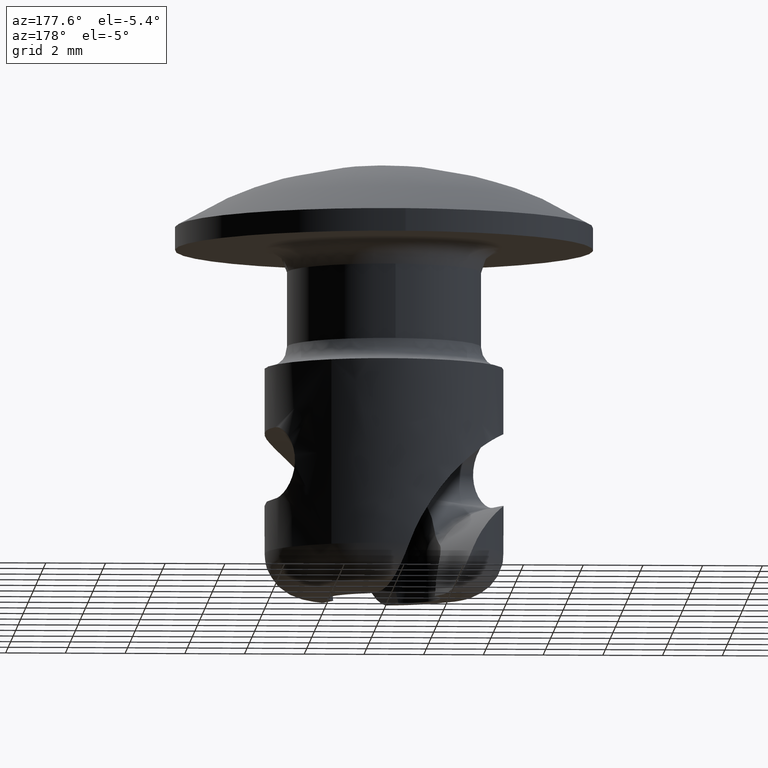
[diagram: clean part render]
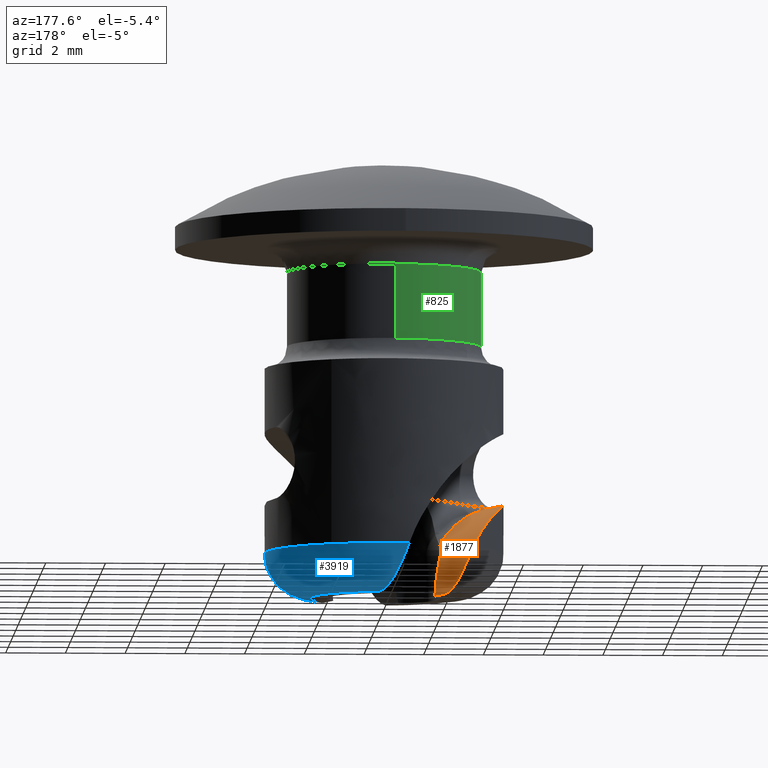
[diagram: same view with three faces highlighted in distinct colors, each labeled with its STEP entity id]
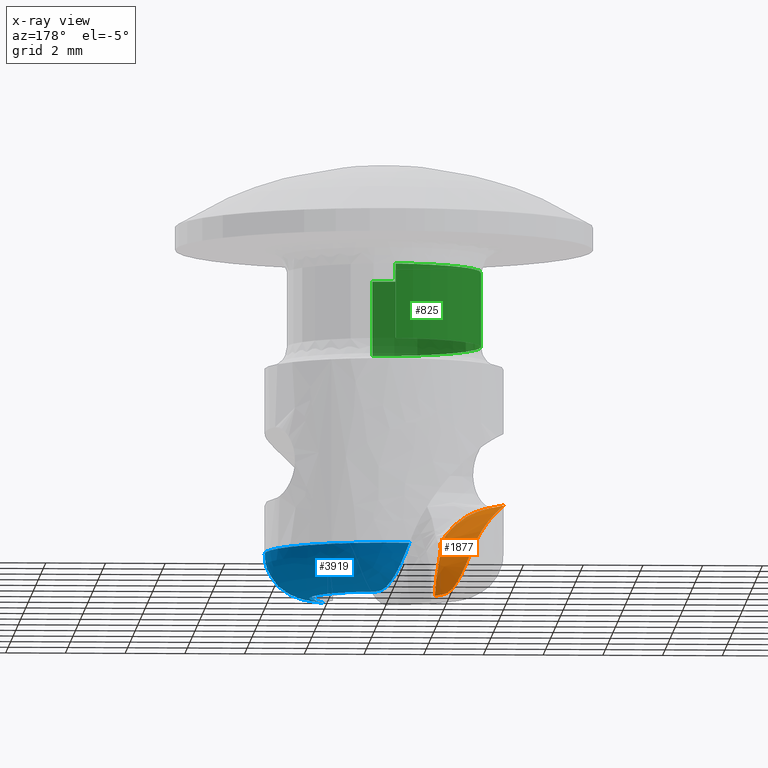
[diagram: x-ray of the same camera — body ghosted, the three highlighted faces saturated]
A machine part, auxiliary view with three faces highlighted in distinct colors.
The next image is the same camera in x-ray (body ghosted, the three faces saturated) — at least one of them is partly hidden behind the body in this view.
Their STEP definitions:

[orange] entity #1877 — the highlighted face is a freeform B-spline surface patch.
#1169=CARTESIAN_POINT('',(-3.708740166080650,-1.498420013742334,-0.841730999884860));
#1170=VERTEX_POINT('',#1169);
#1171=CARTESIAN_POINT('',(-1.881513844358060,-0.264339562170948,-2.216781854890090));
#1172=VERTEX_POINT('',#1171);
#1173=CARTESIAN_POINT('',(-3.708740166080650,-1.498420013742334,-0.841730999884860));
#1174=CARTESIAN_POINT('',(-3.673404421267112,-1.497429299170094,-0.848316137857519));
#1175=CARTESIAN_POINT('',(-3.599526705180769,-1.495357976483200,-0.862083923313879));
#1176=CARTESIAN_POINT('',(-3.486413624523329,-1.472714090863713,-0.889254475332435));
#1177=CARTESIAN_POINT('',(-3.366986117337344,-1.436624454199490,-0.923505222617490));
#1178=CARTESIAN_POINT('',(-3.241751737213644,-1.385533710517274,-0.966636081015844));
#1179=CARTESIAN_POINT('',(-3.111296850146391,-1.320275413514572,-1.019973872254133));
#1180=CARTESIAN_POINT('',(-2.976405270313804,-1.241026332720740,-1.085110533250927));
#1181=CARTESIAN_POINT('',(-2.838123993971811,-1.148176568273195,-1.163629054307551));
#1182=CARTESIAN_POINT('',(-2.697461502442137,-1.042481323601557,-1.257226836350308));
#1183=CARTESIAN_POINT('',(-2.527210036506648,-0.898303513441921,-1.390483812079576));
#1184=CARTESIAN_POINT('',(-2.335723783654763,-0.725236198038654,-1.571395092225262));
#1185=CARTESIAN_POINT('',(-2.157901797309139,-0.579030001134867,-1.774235708085469));
#1186=CARTESIAN_POINT('',(-2.006532342009894,-0.421286218477665,-1.987361904151606));
#1187=CARTESIAN_POINT('',(-1.931077810752713,-0.326561544877881,-2.125827612580026));
#1188=CARTESIAN_POINT('',(-1.881513844358060,-0.264339562170948,-2.216781854890090));
#1189=B_SPLINE_CURVE_WITH_KNOTS('',3,(#1173,#1174,#1175,#1176,#1177,#1178,#1179,#1180,#1181,#1182,#1183,#1184,#1185,#1186,#1187,#1188),.UNSPECIFIED.,.F.,.U.,(4,1,1,1,1,1,1,1,1,1,1,1,1,4),(0.0,0.039927290409534,0.083477426060717,0.131242587131753,0.183672264685199,0.241106476984441,0.303803812601183,0.371962921903674,0.445738287473330,0.525251602883443,0.660801928295244,0.795591599916388,0.865729852088046,1.0),.UNSPECIFIED.);
#1190=EDGE_CURVE('',#1170,#1172,#1189,.T.);
#1683=CARTESIAN_POINT('',(-5.150167947808564,1.990525731144601,-0.836151473579167));
#1684=CARTESIAN_POINT('',(-4.904139923792362,1.381528991219737,-0.836165954909988));
#1685=CARTESIAN_POINT('',(-4.596607067417709,0.620282188103425,-0.836189077508854));
#1686=CARTESIAN_POINT('',(-4.227571579923706,-0.293215567563063,-0.836221502273134));
#1687=CARTESIAN_POINT('',(-3.981540350370491,-0.902211012366314,-0.836250740903726));
#1688=CARTESIAN_POINT('',(-3.797002528596520,-1.358951778146384,-0.836205127983702));
#1689=CARTESIAN_POINT('',(-3.673980553088049,-1.663446930644345,-0.836243657858514));
#1690=CARTESIAN_POINT('',(-4.783104386046897,2.138829104554662,-0.907846787574411));
#1691=CARTESIAN_POINT('',(-4.537066884464153,1.529836193816991,-0.907854001754858));
#1692=CARTESIAN_POINT('',(-4.229563028311924,0.768577673844901,-0.907894620267775));
#1693=CARTESIAN_POINT('',(-3.860508602509553,-0.144912430244831,-0.907919779365897));
#1694=CARTESIAN_POINT('',(-3.614498087991130,-0.753916244469239,-0.907952768208016));
#1695=CARTESIAN_POINT('',(-3.429906929655760,-1.210635460869840,-0.907904504209650));
#1696=CARTESIAN_POINT('',(-3.306894325077137,-1.515134399470955,-0.907922319162073));
#1697=CARTESIAN_POINT('',(-4.430495325036757,2.281292477905547,-1.048258881239491));
#1698=CARTESIAN_POINT('',(-4.184484875373224,1.672288637478053,-1.048295533451240));
#1699=CARTESIAN_POINT('',(-3.876929762253284,0.911050826674656,-1.048282322626328));
#1700=CARTESIAN_POINT('',(-3.507928426780648,-0.002460727310450,-1.048357423106516));
#1701=CARTESIAN_POINT('',(-3.261865356324810,-0.611443307548094,-1.048337466321331));
#1702=CARTESIAN_POINT('',(-3.077366360384959,-1.068199759990574,-1.048390948729983));
#1703=CARTESIAN_POINT('',(-2.954275246104683,-1.372666978598710,-1.048343765781954));
#1704=CARTESIAN_POINT('',(-3.947185148304364,2.476562553934958,-1.352421440720675));
#1705=CARTESIAN_POINT('',(-3.701167652127708,1.867561560484869,-1.352448594641288));
#1706=CARTESIAN_POINT('',(-3.393627844025319,1.106317566050164,-1.352460152827083));
#1707=CARTESIAN_POINT('',(-3.024651860292495,0.192795769292614,-1.352544770516736));
#1708=CARTESIAN_POINT('',(-2.778589770211123,-0.416187207042209,-1.352538518855821));
#1709=CARTESIAN_POINT('',(-2.593848308083224,-0.872845696740980,-1.352357443672407));
#1710=CARTESIAN_POINT('',(-2.470938032095918,-1.177385978795569,-1.352472979746082));
#1711=CARTESIAN_POINT('',(-3.642662119391058,2.599597900326046,-1.584811998392845));
#1712=CARTESIAN_POINT('',(-3.396663456973049,1.990589297540045,-1.584857245739966));
#1713=CARTESIAN_POINT('',(-3.089093494998115,1.229357486066241,-1.584840806737362));
#1714=CARTESIAN_POINT('',(-2.720202039303436,0.315801537748822,-1.585005133072569));
#1715=CARTESIAN_POINT('',(-2.473895977184909,-0.293082867439481,-1.584740574536256));
#1716=CARTESIAN_POINT('',(-2.290212043260109,-0.750168626462519,-1.585602654960288));
#1717=CARTESIAN_POINT('',(-2.166360530007296,-1.054328623802972,-1.584803181499676));
#1718=CARTESIAN_POINT('',(-3.380008491837033,2.705716902761770,-1.870522531658454));
#1719=CARTESIAN_POINT('',(-3.133969811997959,2.096724468070775,-1.870529217316916));
#1720=CARTESIAN_POINT('',(-2.826498581324190,1.335452766543720,-1.870608675034908));
#1721=CARTESIAN_POINT('',(-2.457423246989442,0.421971110053281,-1.870596226920278));
#1722=CARTESIAN_POINT('',(-2.211847017565269,-0.187208166819041,-1.871040128340783));
#1723=CARTESIAN_POINT('',(-2.025242593058110,-0.643113970514181,-1.869163951124388));
#1724=CARTESIAN_POINT('',(-1.904078879211081,-0.948359909801623,-1.870828935118060));
#1725=CARTESIAN_POINT('',(-3.201150913896685,2.777980088029201,-2.102577780224227));
#1726=CARTESIAN_POINT('',(-2.955136227190167,2.168977959478975,-2.102604541757132));
#1727=CARTESIAN_POINT('',(-2.647545914515300,1.407754370225420,-2.102581275967167));
#1728=CARTESIAN_POINT('',(-2.278701476113138,0.494179425680059,-2.102768474835131));
#1729=CARTESIAN_POINT('',(-2.031630247427115,-0.114395832006283,-2.101925978627744));
#1730=CARTESIAN_POINT('',(-1.850246186177860,-0.572410800331815,-2.104600649032122));
#1731=CARTESIAN_POINT('',(-1.725716736179410,-0.876296893322151,-2.103301698877579));
#1732=CARTESIAN_POINT('',(-3.088413853220961,2.823528838023079,-2.262605279928831));
#1733=CARTESIAN_POINT('',(-2.842389181547057,2.214530743663389,-2.262625035181414));
#1734=CARTESIAN_POINT('',(-2.534836646882931,1.453291891095745,-2.262632691334924));
#1735=CARTESIAN_POINT('',(-2.165876190041481,0.539763821064002,-2.262721743364910));
#1736=CARTESIAN_POINT('',(-1.918906115109771,-0.068852305410639,-2.261965898747206));
#1737=CARTESIAN_POINT('',(-1.736839182055178,-0.526591375491594,-2.263970816066639));
#1738=CARTESIAN_POINT('',(-1.613232864175218,-0.830850438238498,-2.263539994049368));
#1739=CARTESIAN_POINT('',(-2.889999050863042,2.903693658478008,-2.601974594606458));
#1740=CARTESIAN_POINT('',(-2.643965553313381,2.294699130005219,-2.601982364883928));
#1741=CARTESIAN_POINT('',(-2.336480138289325,1.533433159330303,-2.602047360457490));
#1742=CARTESIAN_POINT('',(-1.967294322853022,0.619996140122790,-2.601950153294233));
#1743=CARTESIAN_POINT('',(-1.721130335922133,0.011054332806354,-2.601848295730344));
#1744=CARTESIAN_POINT('',(-1.537559347989862,-0.446077059380662,-2.602657884808926));
#1745=CARTESIAN_POINT('',(-1.414753739717634,-0.750659629956505,-2.602844986535935));
#1746=CARTESIAN_POINT('',(-2.772847910316185,2.951025813319395,-2.876005389483821));
#1747=CARTESIAN_POINT('',(-2.526780442774366,2.342045009620618,-2.875994563998206));
#1748=CARTESIAN_POINT('',(-2.219313760726288,1.580771470328651,-2.876070538194828));
#1749=CARTESIAN_POINT('',(-1.850095144731066,0.667347703413231,-2.875945042640120));
#1750=CARTESIAN_POINT('',(-1.604335076364889,0.058242702328822,-2.876189592960061));
#1751=CARTESIAN_POINT('',(-1.420281861333849,-0.398693857374266,-2.876587517498775));
#1752=CARTESIAN_POINT('',(-1.297384914622941,-0.703239524808557,-2.876700042033669));
#1753=CARTESIAN_POINT('',(-2.583842925239118,3.027388819071646,-3.444060543263271));
#1754=CARTESIAN_POINT('',(-2.337809946729025,2.418394080893165,-3.444072382339782));
#1755=CARTESIAN_POINT('',(-2.030272202500992,1.657149252598713,-3.444090895921231));
#1756=CARTESIAN_POINT('',(-1.661170779467018,0.743678136631784,-3.444065174416115));
#1757=CARTESIAN_POINT('',(-1.415275893338038,0.134627605484198,-3.444194919098651));
#1758=CARTESIAN_POINT('',(-1.230946536296180,-0.322197385553377,-3.444369303532465));
#1759=CARTESIAN_POINT('',(-1.108092688027482,-0.626760465896587,-3.444511404129819));
#1760=CARTESIAN_POINT('',(-2.520259979459210,3.053078008445970,-3.843626431773163));
#1761=CARTESIAN_POINT('',(-2.274214477070567,2.444088330245189,-3.843635820577132));
#1762=CARTESIAN_POINT('',(-1.966672147760748,1.682845354444877,-3.843646941062170));
#1763=CARTESIAN_POINT('',(-1.597591455377297,0.769365862747620,-3.843635763324892));
#1764=CARTESIAN_POINT('',(-1.351628983443127,0.160342638050330,-3.843706868196611));
#1765=CARTESIAN_POINT('',(-1.167261746406389,-0.296467048468872,-3.843848315236273));
#1766=CARTESIAN_POINT('',(-1.044370943807668,-0.601015198286757,-3.843961102445025));
#1767=CARTESIAN_POINT('',(-2.521943324060570,3.052397892768469,-4.245959845893760));
#1768=CARTESIAN_POINT('',(-2.275921570635426,2.443398619359204,-4.245979551473355));
#1769=CARTESIAN_POINT('',(-1.968347039605757,1.682168653904185,-4.245974399377960));
#1770=CARTESIAN_POINT('',(-1.599288366575643,0.768680265806632,-4.245977252381476));
#1771=CARTESIAN_POINT('',(-1.353281494318462,0.159674980012487,-4.246013401105419));
#1772=CARTESIAN_POINT('',(-1.168893419161835,-0.297126287355926,-4.246137356159091));
#1773=CARTESIAN_POINT('',(-1.045990394526980,-0.601669499148420,-4.246239510755946));
#1774=B_SPLINE_SURFACE_WITH_KNOTS('',3,3,((#1683,#1690,#1697,#1704,#1711,#1718,#1725,#1732,#1739,#1746,#1753,#1760,#1767),(#1684,#1691,#1698,#1705,#1712,#1719,#1726,#1733,#1740,#1747,#1754,#1761,#1768),(#1685,#1692,#1699,#1706,#1713,#1720,#1727,#1734,#1741,#1748,#1755,#1762,#1769),(#1686,#1693,#1700,#1707,#1714,#1721,#1728,#1735,#1742,#1749,#1756,#1763,#1770),(#1687,#1694,#1701,#1708,#1715,#1722,#1729,#1736,#1743,#1750,#1757,#1764,#1771),(#1688,#1695,#1702,#1709,#1716,#1723,#1730,#1737,#1744,#1751,#1758,#1765,#1772),(#1689,#1696,#1703,#1710,#1717,#1724,#1731,#1738,#1745,#1752,#1759,#1766,#1773)),.UNSPECIFIED.,.F.,.F.,.U.,(4,1,1,1,4),(4,2,1,2,1,1,2,4),(0.0,1.970446994101066,2.463058742626332,2.955670491151599,3.940893988202132),(0.0,1.0,1.500000000000000,2.0,2.250000000000000,2.500000000000000,3.0,4.0),.UNSPECIFIED.);
#1775=CARTESIAN_POINT('',(-2.884555229671560,2.771165301272810,-2.541731000000470));
#1776=VERTEX_POINT('',#1775);
#1777=CARTESIAN_POINT('',(-3.708740166080650,-1.498420013742334,-0.841730999884860));
#1778=CARTESIAN_POINT('',(-3.789603342791146,-1.298275522429606,-0.841731085191805));
#1779=CARTESIAN_POINT('',(-3.853266608022815,-1.094363711314453,-0.844898699676440));
#1780=CARTESIAN_POINT('',(-3.947624874398893,-0.679377164730645,-0.858888886197769));
#1781=CARTESIAN_POINT('',(-3.978314908902422,-0.468300505837197,-0.869689622124139));
#1782=CARTESIAN_POINT('',(-3.998773955492142,-0.146262357777916,-0.895468754313125));
#1783=CARTESIAN_POINT('',(-4.001214435422670,-0.039356055029581,-0.905592794241437));
#1784=CARTESIAN_POINT('',(-3.997677503401662,0.172743829529598,-0.929588470703924));
#1785=CARTESIAN_POINT('',(-3.991706842258776,0.278059572015497,-0.943468917006909));
#1786=CARTESIAN_POINT('',(-3.961579676277360,0.591608507315564,-0.992173819946064));
#1787=CARTESIAN_POINT('',(-3.925240589785189,0.797473242374740,-1.033901799248098));
#1788=CARTESIAN_POINT('',(-3.860135973660301,1.049801262182792,-1.104303979249838));
#1789=CARTESIAN_POINT('',(-3.846160973754782,1.099865145250535,-1.119274116367571));
#1790=CARTESIAN_POINT('',(-3.816631997633517,1.198322896425329,-1.150875348232507));
#1791=CARTESIAN_POINT('',(-3.801046300725309,1.246842307484333,-1.167540746194647));
#1792=CARTESIAN_POINT('',(-3.751988769043546,1.390254244868291,-1.220316447285539));
#1793=CARTESIAN_POINT('',(-3.716216162029630,1.483002367819371,-1.259201711167339));
#1794=CARTESIAN_POINT('',(-3.639395182733260,1.662636845654967,-1.345457747218346));
#1795=CARTESIAN_POINT('',(-3.598344842298541,1.749523326163017,-1.392826489075745));
#1796=CARTESIAN_POINT('',(-3.533479603993701,1.875303522526065,-1.471180455769283));
#1797=CARTESIAN_POINT('',(-3.511259477338315,1.916552436971531,-1.498584499654438));
#1798=CARTESIAN_POINT('',(-3.466426671580432,1.996497554886817,-1.555254974171278));
#1799=CARTESIAN_POINT('',(-3.443755817943394,2.035314400837107,-1.584589094828801));
#1800=CARTESIAN_POINT('',(-3.329540518945864,2.223794195843674,-1.736356739794271));
#1801=CARTESIAN_POINT('',(-3.235430647707428,2.356708378572311,-1.874027955967950));
#1802=CARTESIAN_POINT('',(-3.120600981695306,2.502647577831652,-2.068504378930841));
#1803=CARTESIAN_POINT('',(-3.097723793038400,2.530882099920727,-2.108617462539967));
#1804=CARTESIAN_POINT('',(-3.052670196831338,2.585045757211015,-2.190677628121291));
#1805=CARTESIAN_POINT('',(-3.030528409444796,2.610938036005944,-2.232554031894098));
#1806=CARTESIAN_POINT('',(-2.965449095197070,2.685230547071238,-2.360714131926009));
#1807=CARTESIAN_POINT('',(-2.923857825347109,2.730254531340306,-2.449524356297505));
#1808=CARTESIAN_POINT('',(-2.884555229671560,2.771165301272810,-2.541731000000470));
#1809=B_SPLINE_CURVE_WITH_KNOTS('',3,(#1777,#1778,#1779,#1780,#1781,#1782,#1783,#1784,#1785,#1786,#1787,#1788,#1789,#1790,#1791,#1792,#1793,#1794,#1795,#1796,#1797,#1798,#1799,#1800,#1801,#1802,#1803,#1804,#1805,#1806,#1807,#1808),.UNSPECIFIED.,.F.,.U.,(4,2,2,2,2,2,2,2,2,2,2,2,2,2,2,4),(0.0,0.125000000000000,0.250000000000000,0.312500000000000,0.375000000000000,0.500000000000000,0.531250000000000,0.562500000000000,0.625000000000000,0.687500000000000,0.718750000000000,0.750000000000000,0.875000000000000,0.906250000000000,0.937500000000000,1.0),.UNSPECIFIED.);
#1810=EDGE_CURVE('',#1170,#1776,#1809,.T.);
#1811=ORIENTED_EDGE('',*,*,#1810,.F.);
#1812=ORIENTED_EDGE('',*,*,#1190,.T.);
#1813=CARTESIAN_POINT('',(-1.664449571211370,0.916279663733441,-4.041731000000000));
#1814=VERTEX_POINT('',#1813);
#1815=CARTESIAN_POINT('',(-1.664449571211370,0.916279663733441,-4.041731000000000));
#1816=CARTESIAN_POINT('',(-1.667765263835405,0.910256612065892,-3.944347983160380));
#1817=CARTESIAN_POINT('',(-1.673597626954773,0.899628140123365,-3.848364676525792));
#1818=CARTESIAN_POINT('',(-1.689693682516486,0.869019628444428,-3.659163398309601));
#1819=CARTESIAN_POINT('',(-1.699961116047309,0.849040717203565,-3.565945577066669));
#1820=CARTESIAN_POINT('',(-1.724137213808776,0.798804682994247,-3.382410134949178));
#1821=CARTESIAN_POINT('',(-1.738053422142700,0.768557078685402,-3.292091063966928));
#1822=CARTESIAN_POINT('',(-1.760802522631783,0.714088867592273,-3.159026710954413));
#1823=CARTESIAN_POINT('',(-1.768727308948244,0.694320378612483,-3.114903214120736));
#1824=CARTESIAN_POINT('',(-1.784817272994294,0.651847037254395,-3.028454439859632));
#1825=CARTESIAN_POINT('',(-1.792965577448857,0.629193940741889,-2.986200737881362));
#1826=CARTESIAN_POINT('',(-1.817302213649117,0.556749856315179,-2.862428167713407));
#1827=CARTESIAN_POINT('',(-1.833412424207727,0.502507227160637,-2.783881467905613));
#1828=CARTESIAN_POINT('',(-1.855318368567029,0.410785517284321,-2.672571653977506));
#1829=CARTESIAN_POINT('',(-1.862264199610576,0.378325597957587,-2.636406035601322));
#1830=CARTESIAN_POINT('',(-1.874794246013761,0.310330883854757,-2.567156532363411));
#1831=CARTESIAN_POINT('',(-1.880356165132242,0.274953628400522,-2.534204576543164));
#1832=CARTESIAN_POINT('',(-1.894300235238677,0.164593378352178,-2.440403104765159));
#1833=CARTESIAN_POINT('',(-1.899987930595879,0.085420510634561,-2.384564540367462));
#1834=CARTESIAN_POINT('',(-1.899994469545920,-0.085285769565145,-2.287253010361252));
#1835=CARTESIAN_POINT('',(-1.894249923772138,-0.173684527415947,-2.247591698803152));
#1836=CARTESIAN_POINT('',(-1.881513844358060,-0.264339562170948,-2.216781854890090));
#1837=B_SPLINE_CURVE_WITH_KNOTS('',3,(#1815,#1816,#1817,#1818,#1819,#1820,#1821,#1822,#1823,#1824,#1825,#1826,#1827,#1828,#1829,#1830,#1831,#1832,#1833,#1834,#1835,#1836),.UNSPECIFIED.,.F.,.U.,(4,2,2,2,2,2,2,2,2,2,4),(0.0,0.125000000000000,0.250000000000000,0.375000000000000,0.437500000000000,0.500000000000000,0.625000000000000,0.687500000000000,0.750000000000000,0.875000000000000,1.0),.UNSPECIFIED.);
#1838=EDGE_CURVE('',#1814,#1172,#1837,.T.);
#1839=ORIENTED_EDGE('',*,*,#1838,.F.);
#1840=CARTESIAN_POINT('',(-1.934202547952070,1.583941404405210,-4.041731000000000));
#1841=VERTEX_POINT('',#1840);
#1842=CARTESIAN_POINT('',(-1.934202547952070,1.583941404405210,-4.041731000000000));
#1843=CARTESIAN_POINT('',(-1.664449571211370,0.916279663733441,-4.041731000000000));
#1844=QUASI_UNIFORM_CURVE('',1,(#1842,#1843),.UNSPECIFIED.,.F.,.U.);
#1845=EDGE_CURVE('',#1841,#1814,#1844,.T.);
#1846=ORIENTED_EDGE('',*,*,#1845,.F.);
#1847=CARTESIAN_POINT('',(-2.884555229671560,2.771165301272810,-2.541731000000470));
#1848=CARTESIAN_POINT('',(-2.846669988977846,2.810600721859436,-2.630612429995173));
#1849=CARTESIAN_POINT('',(-2.807917511302755,2.838093716545041,-2.722163092892382));
#1850=CARTESIAN_POINT('',(-2.747953625626095,2.859512682276400,-2.863751219175736));
#1851=CARTESIAN_POINT('',(-2.727506099503910,2.863293516838539,-2.912000071520401));
#1852=CARTESIAN_POINT('',(-2.686920388999058,2.863626402393131,-3.007282099653129));
#1853=CARTESIAN_POINT('',(-2.646470468347311,2.856892243159453,-3.101759401167779));
#1854=CARTESIAN_POINT('',(-2.605884892738354,2.836135263247263,-3.194464522396070));
#1855=CARTESIAN_POINT('',(-2.564966029106786,2.808185652995663,-3.286146472124139));
#1856=CARTESIAN_POINT('',(-2.544611162230534,2.790768993979691,-3.330853068400976));
#1857=CARTESIAN_POINT('',(-2.504389990708679,2.749974435502475,-3.416718288379666));
#1858=CARTESIAN_POINT('',(-2.484428375561476,2.726531188043906,-3.458092254206432));
#1859=CARTESIAN_POINT('',(-2.444474173774868,2.673819859911416,-3.537707836483467));
#1860=CARTESIAN_POINT('',(-2.424365660845095,2.644346842821889,-3.576147223085176));
#1861=CARTESIAN_POINT('',(-2.364834160498539,2.549540669824700,-3.684201346698746));
#1862=CARTESIAN_POINT('',(-2.325900256415580,2.477663205291824,-3.747278898892466));
#1863=CARTESIAN_POINT('',(-2.266743069147014,2.358630030848322,-3.829252590282774));
#1864=CARTESIAN_POINT('',(-2.247072758676203,2.317396890565010,-3.854199206533339));
#1865=CARTESIAN_POINT('',(-2.207965420833116,2.232964659921110,-3.899134509406125));
#1866=CARTESIAN_POINT('',(-2.188464367254221,2.189634489685610,-3.919212366829397));
#1867=CARTESIAN_POINT('',(-2.129798895271308,2.056591893633847,-3.972595480021854));
#1868=CARTESIAN_POINT('',(-2.090175308003297,1.963167673239728,-3.999107578551089));
#1869=CARTESIAN_POINT('',(-2.011920748575378,1.775187838895855,-4.033507688967568));
#1870=CARTESIAN_POINT('',(-1.973034630967783,1.680054138809008,-4.041731001587542));
#1871=CARTESIAN_POINT('',(-1.934202547944476,1.583941404408339,-4.041731000000000));
#1872=B_SPLINE_CURVE_WITH_KNOTS('',3,(#1847,#1848,#1849,#1850,#1851,#1852,#1853,#1854,#1855,#1856,#1857,#1858,#1859,#1860,#1861,#1862,#1863,#1864,#1865,#1866,#1867,#1868,#1869,#1870,#1871),.UNSPECIFIED.,.F.,.U.,(4,2,2,1,2,2,2,2,2,2,2,2,4),(0.0,0.125000000000000,0.187500000000000,0.250000000000000,0.312500000000000,0.375000000000000,0.437500000000000,0.500000000000000,0.625000000000000,0.687500000000000,0.750000000000000,0.875000000000000,1.0),.UNSPECIFIED.);
#1873=EDGE_CURVE('',#1776,#1841,#1872,.T.);
#1874=ORIENTED_EDGE('',*,*,#1873,.F.);
#1875=EDGE_LOOP('',(#1811,#1812,#1839,#1846,#1874));
#1876=FACE_OUTER_BOUND('',#1875,.T.);
#1877=ADVANCED_FACE('',(#1876),#1774,.T.);

[blue] entity #3919 — the highlighted face is a freeform B-spline surface patch.
#3252=CARTESIAN_POINT('',(2.884555229671560,-2.771165301272810,-2.541731000000470));
#3253=VERTEX_POINT('',#3252);
#3289=CARTESIAN_POINT('',(1.908643068549767,3.515266381128359,-2.541731000000000));
#3290=VERTEX_POINT('',#3289);
#3291=CARTESIAN_POINT('',(1.908643068549766,3.515266381128358,-2.541731000000000));
#3292=CARTESIAN_POINT('',(2.966838043183747,2.940710627283787,-2.541731000000055));
#3293=CARTESIAN_POINT('',(3.532011302466348,1.877474952365209,-2.541731000000138));
#3294=CARTESIAN_POINT('',(4.892194440281161,-0.681377952995390,-2.541731000000341));
#3295=CARTESIAN_POINT('',(2.884555229671560,-2.771165301272810,-2.541731000000470));
#3303=(BOUNDED_CURVE()B_SPLINE_CURVE(2,(#3291,#3292,#3293,#3294,#3295),.UNSPECIFIED.,.F.,.U.)B_SPLINE_CURVE_WITH_KNOTS((3,2,3),(0.266260725077177,0.500000000000000,1.0),.UNSPECIFIED.)CURVE()GEOMETRIC_REPRESENTATION_ITEM()RATIONAL_B_SPLINE_CURVE((0.905308572045853,0.911091442488655,1.0,0.809812541044501,1.0))REPRESENTATION_ITEM(''));
#3304=EDGE_CURVE('',#3290,#3253,#3303,.T.);
#3334=CARTESIAN_POINT('',(-0.683457335295928,3.941180308982785,-2.541731000000000));
#3335=VERTEX_POINT('',#3334);
#3336=CARTESIAN_POINT('',(-0.683457335295928,3.941180308982785,-2.541731000000000));
#3337=CARTESIAN_POINT('',(0.686623547545400,4.178772027887586,-2.541731000000001));
#3338=CARTESIAN_POINT('',(1.908643068549766,3.515266381128358,-2.541731000000000));
#3346=(BOUNDED_CURVE()B_SPLINE_CURVE(2,(#3336,#3337,#3338),.UNSPECIFIED.,.F.,.U.)B_SPLINE_CURVE_WITH_KNOTS((3,3),(0.0,0.266260725077177),.UNSPECIFIED.)CURVE()GEOMETRIC_REPRESENTATION_ITEM()RATIONAL_B_SPLINE_CURVE((1.0,0.898721098555846,0.905308572045853))REPRESENTATION_ITEM(''));
#3347=EDGE_CURVE('',#3335,#3290,#3346,.T.);
#3683=CARTESIAN_POINT('',(0.291036046533577,2.483003803607885,-4.041731000000000));
#3684=VERTEX_POINT('',#3683);
#3685=CARTESIAN_POINT('',(-0.683457335295928,3.941180308982785,-2.541731000000000));
#3686=CARTESIAN_POINT('',(-0.646166459047454,3.947647063477390,-2.641929035092937));
#3687=CARTESIAN_POINT('',(-0.608251872741699,3.943589974786615,-2.740667941847604));
#3688=CARTESIAN_POINT('',(-0.550109472229816,3.922331558712008,-2.886525809740366));
#3689=CARTESIAN_POINT('',(-0.530512227189954,3.912698978207420,-2.934766129255796));
#3690=CARTESIAN_POINT('',(-0.490767715263741,3.888235182191726,-3.030430335426217));
#3691=CARTESIAN_POINT('',(-0.470562200040254,3.873328281236276,-3.077974954089025));
#3692=CARTESIAN_POINT('',(-0.410232569843381,3.821750728585184,-3.216203216464099));
#3693=CARTESIAN_POINT('',(-0.369991098403392,3.778086552048917,-3.303535429342785));
#3694=CARTESIAN_POINT('',(-0.308669415900221,3.699067926425389,-3.427074418099419));
#3695=CARTESIAN_POINT('',(-0.287990332274468,3.670345070260649,-3.467143520783484));
#3696=CARTESIAN_POINT('',(-0.246470061243619,3.608774463259577,-3.543993601720002));
#3697=CARTESIAN_POINT('',(-0.225798730522217,3.576196100241466,-3.580472048987003));
#3698=CARTESIAN_POINT('',(-0.163788032458282,3.473355474483973,-3.684204565650581));
#3699=CARTESIAN_POINT('',(-0.122449932685480,3.398026974933355,-3.745798423512191));
#3700=CARTESIAN_POINT('',(-0.059486872921926,3.275180145885512,-3.826564942787022));
#3701=CARTESIAN_POINT('',(-0.038368234757720,3.232617394273134,-3.851474303168736));
#3702=CARTESIAN_POINT('',(0.003460383214007,3.146014373016437,-3.896405476094499));
#3703=CARTESIAN_POINT('',(0.045097975811263,3.057514953166714,-3.936739370242787));
#3704=CARTESIAN_POINT('',(0.086590527366563,2.965427371013453,-3.968121144809187));
#3705=CARTESIAN_POINT('',(0.128101268526562,2.871599683140141,-3.995057758024216));
#3706=CARTESIAN_POINT('',(0.148948548234185,2.823620961809377,-4.006336518993459));
#3707=CARTESIAN_POINT('',(0.211007526763131,2.678520518711953,-4.033178571601845));
#3708=CARTESIAN_POINT('',(0.251414644050774,2.581070171629321,-4.041731001618942));
#3709=CARTESIAN_POINT('',(0.291036046545530,2.483003803612767,-4.041731000000000));
#3710=B_SPLINE_CURVE_WITH_KNOTS('',3,(#3685,#3686,#3687,#3688,#3689,#3690,#3691,#3692,#3693,#3694,#3695,#3696,#3697,#3698,#3699,#3700,#3701,#3702,#3703,#3704,#3705,#3706,#3707,#3708,#3709),.UNSPECIFIED.,.F.,.U.,(4,2,2,2,2,2,2,2,2,1,2,2,4),(0.0,0.125000000000000,0.187500000000000,0.250000000000000,0.375000000000000,0.437500000000000,0.500000000000000,0.625000000000001,0.687500000000000,0.750000000000000,0.812500000000000,0.875000000000000,1.0),.UNSPECIFIED.);
#3711=EDGE_CURVE('',#3335,#3684,#3710,.T.);
#3820=CARTESIAN_POINT('',(1.934202547952070,-1.583941404405210,-4.041731000000000));
#3821=VERTEX_POINT('',#3820);
#3827=CARTESIAN_POINT('',(2.884555229671560,-2.771165301272810,-2.541731000000470));
#3828=CARTESIAN_POINT('',(2.846669988977822,-2.810600721859462,-2.630612429995233));
#3829=CARTESIAN_POINT('',(2.807917511302718,-2.838093716545063,-2.722163092892472));
#3830=CARTESIAN_POINT('',(2.747953625626058,-2.859512682276409,-2.863751219175822));
#3831=CARTESIAN_POINT('',(2.727506099503876,-2.863293516838543,-2.912000071520480));
#3832=CARTESIAN_POINT('',(2.686920388999022,-2.863626402393128,-3.007282099653215));
#3833=CARTESIAN_POINT('',(2.646470468347274,-2.856892243159442,-3.101759401167864));
#3834=CARTESIAN_POINT('',(2.605884892738324,-2.836135263247245,-3.194464522396141));
#3835=CARTESIAN_POINT('',(2.564966029106762,-2.808185652995643,-3.286146472124191));
#3836=CARTESIAN_POINT('',(2.544611162230505,-2.790768993979665,-3.330853068401035));
#3837=CARTESIAN_POINT('',(2.504389990708653,-2.749974435502445,-3.416718288379722));
#3838=CARTESIAN_POINT('',(2.484428375561453,-2.726531188043876,-3.458092254206482));
#3839=CARTESIAN_POINT('',(2.444474173774850,-2.673819859911390,-3.537707836483507));
#3840=CARTESIAN_POINT('',(2.424365660845079,-2.644346842821863,-3.576147223085208));
#3841=CARTESIAN_POINT('',(2.364834160498521,-2.549540669824668,-3.684201346698775));
#3842=CARTESIAN_POINT('',(2.325900256415565,-2.477663205291795,-3.747278898892486));
#3843=CARTESIAN_POINT('',(2.266743069147011,-2.358630030848312,-3.829252590282780));
#3844=CARTESIAN_POINT('',(2.247072758676195,-2.317396890564995,-3.854199206533351));
#3845=CARTESIAN_POINT('',(2.207965420833109,-2.232964659921094,-3.899134509406134));
#3846=CARTESIAN_POINT('',(2.188464367254215,-2.189634489685596,-3.919212366829403));
#3847=CARTESIAN_POINT('',(2.129798895271307,-2.056591893633846,-3.972595480021854));
#3848=CARTESIAN_POINT('',(2.090175308003298,-1.963167673239733,-3.999107578551089));
#3849=CARTESIAN_POINT('',(2.011920748575376,-1.775187838895849,-4.033507688967570));
#3850=CARTESIAN_POINT('',(1.973034630967780,-1.680054138809002,-4.041731001587541));
#3851=CARTESIAN_POINT('',(1.934202547944476,-1.583941404408339,-4.041731000000000));
#3852=B_SPLINE_CURVE_WITH_KNOTS('',3,(#3827,#3828,#3829,#3830,#3831,#3832,#3833,#3834,#3835,#3836,#3837,#3838,#3839,#3840,#3841,#3842,#3843,#3844,#3845,#3846,#3847,#3848,#3849,#3850,#3851),.UNSPECIFIED.,.F.,.U.,(4,2,2,1,2,2,2,2,2,2,2,2,4),(0.0,0.124999999999999,0.187499999999999,0.249999999999999,0.312499999999999,0.374999999999998,0.437499999999998,0.499999999999998,0.624999999999998,0.687499999999999,0.749999999999999,0.874999999999999,1.0),.UNSPECIFIED.);
#3853=EDGE_CURVE('',#3253,#3821,#3852,.T.);
#3864=CARTESIAN_POINT('',(0.291036046533577,2.483003803607885,-4.041731000000000));
#3865=CARTESIAN_POINT('',(0.470953173823876,2.461947572973736,-4.041731000000006));
#3866=CARTESIAN_POINT('',(0.812494973088940,2.383595391932933,-4.041730999999993));
#3867=CARTESIAN_POINT('',(1.212667504457879,2.197951206859529,-4.041730999999993));
#3868=CARTESIAN_POINT('',(1.520138001181727,1.992480390295931,-4.041731000000035));
#3869=CARTESIAN_POINT('',(1.747788931002809,1.796704925859000,-4.041730999999968));
#3870=CARTESIAN_POINT('',(1.958417862531030,1.563750511188545,-4.041731000000052));
#3871=CARTESIAN_POINT('',(2.143399553762952,1.301265414489266,-4.041730999999973));
#3872=CARTESIAN_POINT('',(2.298249841098144,1.003907004426365,-4.041731000000054));
#3873=CARTESIAN_POINT('',(2.434163427167897,0.622395873968894,-4.041730999999946));
#3874=CARTESIAN_POINT('',(2.498450450008219,0.249626093936679,-4.041731000000016));
#3875=CARTESIAN_POINT('',(2.503176489208300,-0.148061529800838,-4.041730999999988));
#3876=CARTESIAN_POINT('',(2.455635005237485,-0.536555827209265,-4.041731000000013));
#3877=CARTESIAN_POINT('',(2.341235776052328,-0.904291770737705,-4.041731000000000));
#3878=CARTESIAN_POINT('',(2.164479481350828,-1.268242434671811,-4.041730999999946));
#3879=CARTESIAN_POINT('',(2.031327539377264,-1.465365116825659,-4.041731000000103));
#3880=CARTESIAN_POINT('',(1.934202547952070,-1.583941404405210,-4.041731000000000));
#3881=B_SPLINE_CURVE_WITH_KNOTS('',3,(#3864,#3865,#3866,#3867,#3868,#3869,#3870,#3871,#3872,#3873,#3874,#3875,#3876,#3877,#3878,#3879,#3880),.UNSPECIFIED.,.F.,.U.,(4,1,1,1,1,1,1,1,1,1,1,1,1,1,4),(9.424034E-009,0.543429400468979,1.045062722058402,1.316781259242573,1.651204038803757,1.943821021185541,2.257344276747094,2.612668091738905,2.947077013718310,3.469611815209112,3.741330618549577,4.138456035147653,4.640089654091624,4.890904436108563,5.350730039482195),.UNSPECIFIED.);
#3882=EDGE_CURVE('',#3684,#3821,#3881,.T.);
#3889=CARTESIAN_POINT('',(-1.154422325971209,3.826001909183057,-2.437425265564882));
#3890=CARTESIAN_POINT('',(2.105802799411528,4.809711996572363,-2.437425265564882));
#3891=CARTESIAN_POINT('',(3.594357103557023,1.746876792416208,-2.437425265564881));
#3892=CARTESIAN_POINT('',(5.074463403306368,-1.298575878098186,-2.437425265564881));
#3893=CARTESIAN_POINT('',(2.313409979027753,-3.258698480177016,-2.437425265564881));
#3894=CARTESIAN_POINT('',(-1.189068175431454,3.940825646733913,-4.158036799931836));
#3895=CARTESIAN_POINT('',(2.169000924690330,4.954058267457405,-4.158036799931836));
#3896=CARTESIAN_POINT('',(3.702228852322305,1.799303039738418,-4.158036799931834));
#3897=CARTESIAN_POINT('',(5.226755238978003,-1.337547979878567,-4.158036799931835));
#3898=CARTESIAN_POINT('',(2.382838689881725,-3.356496638130655,-4.158036799931834));
#3899=CARTESIAN_POINT('',(-0.692039158838013,2.293565433877196,-4.038100043305813));
#3900=CARTESIAN_POINT('',(1.262361239208945,2.883268080908590,-4.038100043305813));
#3901=CARTESIAN_POINT('',(2.154701802406997,1.047196609785169,-4.038100043305813));
#3902=CARTESIAN_POINT('',(3.041978057920896,-0.778454589926924,-4.038100043305811));
#3903=CARTESIAN_POINT('',(1.386815084840762,-1.953485223209948,-4.038100043305811));
#3911=(BOUNDED_SURFACE()B_SPLINE_SURFACE(2,2,((#3889,#3894,#3899),(#3890,#3895,#3900),(#3891,#3896,#3901),(#3892,#3897,#3902),(#3893,#3898,#3903)),.UNSPECIFIED.,.F.,.F.,.U.)B_SPLINE_SURFACE_WITH_KNOTS((3,2,3),(3,3),(0.0,5.886840207656977,11.748512653985630),(0.0,2.733561038744551),.UNSPECIFIED.)GEOMETRIC_REPRESENTATION_ITEM()RATIONAL_B_SPLINE_SURFACE(((0.897905595483542,0.589228042854144,0.897905595483542),(0.691511464019221,0.453787066930821,0.691511464019221),(0.919258316853722,0.603240231090688,0.919258316853722),(0.692485140598374,0.454426017782663,0.692485140598374),(0.896148754271494,0.588075159840398,0.896148754271494)))REPRESENTATION_ITEM('')SURFACE());
#3912=ORIENTED_EDGE('',*,*,#3711,.F.);
#3913=ORIENTED_EDGE('',*,*,#3347,.T.);
#3914=ORIENTED_EDGE('',*,*,#3304,.T.);
#3915=ORIENTED_EDGE('',*,*,#3853,.T.);
#3916=ORIENTED_EDGE('',*,*,#3882,.F.);
#3917=EDGE_LOOP('',(#3912,#3913,#3914,#3915,#3916));
#3918=FACE_OUTER_BOUND('',#3917,.T.);
#3919=ADVANCED_FACE('',(#3918),#3911,.T.);

[green] entity #825 — the highlighted face is a freeform B-spline surface patch.
#620=CARTESIAN_POINT('',(-3.249745393504387,-0.040839654759812,6.908266000059379));
#621=VERTEX_POINT('',#620);
#635=CARTESIAN_POINT('',(0.254988748988679,-3.239983601483341,6.908266000027545));
#636=VERTEX_POINT('',#635);
#637=CARTESIAN_POINT('',(0.254988748988679,-3.239983601483341,6.908266000027545));
#638=CARTESIAN_POINT('',(0.127691183783301,-3.250001999998159,6.908266000028710));
#639=CARTESIAN_POINT('',(-1.474039E-013,-3.250001999998196,6.908266000029876));
#640=CARTESIAN_POINT('',(-3.209415747215928,-3.250001999999113,6.908266000059196));
#641=CARTESIAN_POINT('',(-3.249745393504387,-0.040839654759812,6.908266000059379));
#649=(BOUNDED_CURVE()B_SPLINE_CURVE(2,(#637,#638,#639,#640,#641),.UNSPECIFIED.,.F.,.U.)B_SPLINE_CURVE_WITH_KNOTS((3,2,3),(0.736331484176717,0.750000000000000,0.997784295921358),.UNSPECIFIED.)CURVE()GEOMETRIC_REPRESENTATION_ITEM()RATIONAL_B_SPLINE_CURVE((0.969723739214353,0.983986337616464,1.0,0.709702639984674,0.994854295643161))REPRESENTATION_ITEM(''));
#650=EDGE_CURVE('',#636,#621,#649,.T.);
#691=CARTESIAN_POINT('',(-3.250002000000000,0.0,6.908265999999999));
#692=VERTEX_POINT('',#691);
#693=CARTESIAN_POINT('',(-0.254988748988679,3.239983601483341,6.908266000027547));
#694=VERTEX_POINT('',#693);
#695=CARTESIAN_POINT('',(-3.250002000000000,0.0,6.908265999999999));
#696=CARTESIAN_POINT('',(-3.250001999999896,3.004274173285231,6.908266000000173));
#697=CARTESIAN_POINT('',(-0.254988748988679,3.239983601483341,6.908266000027547));
#705=(BOUNDED_CURVE()B_SPLINE_CURVE(2,(#695,#696,#697),.UNSPECIFIED.,.F.,.U.)B_SPLINE_CURVE_WITH_KNOTS((3,3),(0.0,0.236331484176717),.UNSPECIFIED.)CURVE()GEOMETRIC_REPRESENTATION_ITEM()RATIONAL_B_SPLINE_CURVE((1.0,0.723120443570084,0.969723739214353))REPRESENTATION_ITEM(''));
#706=EDGE_CURVE('',#692,#694,#705,.T.);
#708=CARTESIAN_POINT('',(-3.249745393504387,-0.040839654759812,6.908266000059379));
#709=CARTESIAN_POINT('',(-3.250001999999991,-0.020420633543596,6.908266000029689));
#710=CARTESIAN_POINT('',(-3.250002000000000,0.0,6.908265999999999));
#718=(BOUNDED_CURVE()B_SPLINE_CURVE(2,(#708,#709,#710),.UNSPECIFIED.,.F.,.U.)B_SPLINE_CURVE_WITH_KNOTS((3,3),(0.997784295921358,1.0),.UNSPECIFIED.)CURVE()GEOMETRIC_REPRESENTATION_ITEM()RATIONAL_B_SPLINE_CURVE((0.994854295643161,0.997404141201874,1.0))REPRESENTATION_ITEM(''));
#719=EDGE_CURVE('',#621,#692,#718,.T.);
#743=CARTESIAN_POINT('',(0.254992218033687,-3.239983328467333,6.970766000061673));
#744=CARTESIAN_POINT('',(-2.984991110433645,-3.494975546501020,6.970766000061674));
#745=CARTESIAN_POINT('',(-3.239983328467333,-0.254992218033687,6.970766000061673));
#746=CARTESIAN_POINT('',(-3.494975546501020,2.984991110433645,6.970766000061674));
#747=CARTESIAN_POINT('',(-0.254992218033687,3.239983328467333,6.970766000061673));
#748=CARTESIAN_POINT('',(0.254992218033687,-3.239983328467333,4.344203499965376));
#749=CARTESIAN_POINT('',(-2.984991110433645,-3.494975546501020,4.344203499965375));
#750=CARTESIAN_POINT('',(-3.239983328467333,-0.254992218033687,4.344203499965376));
#751=CARTESIAN_POINT('',(-3.494975546501020,2.984991110433645,4.344203499965375));
#752=CARTESIAN_POINT('',(-0.254992218033687,3.239983328467333,4.344203499965376));
#760=(BOUNDED_SURFACE()B_SPLINE_SURFACE(2,1,((#743,#748),(#744,#749),(#745,#750),(#746,#751),(#747,#752)),.UNSPECIFIED.,.F.,.F.,.U.)B_SPLINE_SURFACE_WITH_KNOTS((3,2,3),(2,2),(0.0,5.384779624558734,10.769559249117471),(0.0,2.626562500096297),.UNSPECIFIED.)GEOMETRIC_REPRESENTATION_ITEM()RATIONAL_B_SPLINE_SURFACE(((1.0,1.0),(0.707106781186548,0.707106781186548),(1.0,1.0),(0.707106781186548,0.707106781186548),(1.0,1.0)))REPRESENTATION_ITEM('')SURFACE());
#761=CARTESIAN_POINT('',(0.254988705616121,-3.239983604896759,4.408265999984854));
#762=VERTEX_POINT('',#761);
#763=CARTESIAN_POINT('',(-3.248975614538950,-0.081672860457110,4.408265999967727));
#764=VERTEX_POINT('',#763);
#765=CARTESIAN_POINT('',(0.254988705616121,-3.239983604896759,4.408265999984855));
#766=CARTESIAN_POINT('',(0.127691161996388,-3.250001999998131,4.408265999984225));
#767=CARTESIAN_POINT('',(-1.427186E-013,-3.250001999998169,4.408265999983593));
#768=CARTESIAN_POINT('',(-3.169330047937005,-3.250001999999120,4.408265999967910));
#769=CARTESIAN_POINT('',(-3.248975614538951,-0.081672860457110,4.408265999967727));
#777=(BOUNDED_CURVE()B_SPLINE_CURVE(2,(#765,#766,#767,#768,#769),.UNSPECIFIED.,.F.,.U.)B_SPLINE_CURVE_WITH_KNOTS((3,2,3),(0.736331486471519,0.750000000000000,0.995579891769480),.UNSPECIFIED.)CURVE()GEOMETRIC_REPRESENTATION_ITEM()RATIONAL_B_SPLINE_CURVE((0.969723744003439,0.983986340304992,1.0,0.712285260095110,0.989826157680837))REPRESENTATION_ITEM(''));
#778=EDGE_CURVE('',#762,#764,#777,.T.);
#779=ORIENTED_EDGE('',*,*,#778,.F.);
#780=CARTESIAN_POINT('',(0.254988748988679,-3.239983601483341,6.908266000027545));
#781=CARTESIAN_POINT('',(0.254988705616121,-3.239983604896759,4.408265999984854));
#782=QUASI_UNIFORM_CURVE('',1,(#780,#781),.UNSPECIFIED.,.F.,.U.);
#783=EDGE_CURVE('',#636,#762,#782,.T.);
#784=ORIENTED_EDGE('',*,*,#783,.F.);
#785=ORIENTED_EDGE('',*,*,#650,.T.);
#786=ORIENTED_EDGE('',*,*,#719,.T.);
#787=ORIENTED_EDGE('',*,*,#706,.T.);
#788=CARTESIAN_POINT('',(-0.254988705616121,3.239983604896759,4.408265999984853));
#789=VERTEX_POINT('',#788);
#790=CARTESIAN_POINT('',(-0.254988748988679,3.239983601483341,6.908266000027547));
#791=CARTESIAN_POINT('',(-0.254988705616121,3.239983604896759,4.408265999984853));
#792=QUASI_UNIFORM_CURVE('',1,(#790,#791),.UNSPECIFIED.,.F.,.U.);
#793=EDGE_CURVE('',#694,#789,#792,.T.);
#794=ORIENTED_EDGE('',*,*,#793,.T.);
#795=CARTESIAN_POINT('',(-3.250002000000000,0.0,4.408265999999915));
#796=VERTEX_POINT('',#795);
#797=CARTESIAN_POINT('',(-3.250002000000000,0.0,4.408265999999915));
#798=CARTESIAN_POINT('',(-3.250001999999925,3.004274213626790,4.408265999999714));
#799=CARTESIAN_POINT('',(-0.254988705616121,3.239983604896759,4.408265999984853));
#807=(BOUNDED_CURVE()B_SPLINE_CURVE(2,(#797,#798,#799),.UNSPECIFIED.,.F.,.U.)B_SPLINE_CURVE_WITH_KNOTS((3,3),(0.0,0.236331486471519),.UNSPECIFIED.)CURVE()GEOMETRIC_REPRESENTATION_ITEM()RATIONAL_B_SPLINE_CURVE((1.0,0.723120440881555,0.969723744003438))REPRESENTATION_ITEM(''));
#808=EDGE_CURVE('',#796,#789,#807,.T.);
#809=ORIENTED_EDGE('',*,*,#808,.F.);
#810=CARTESIAN_POINT('',(-3.248975614538951,-0.081672860457110,4.408265999967727));
#811=CARTESIAN_POINT('',(-3.250002000000000,-0.040842879538086,4.408265999983820));
#812=CARTESIAN_POINT('',(-3.250002000000000,0.0,4.408265999999915));
#820=(BOUNDED_CURVE()B_SPLINE_CURVE(2,(#810,#811,#812),.UNSPECIFIED.,.F.,.U.)B_SPLINE_CURVE_WITH_KNOTS((3,3),(0.995579891769480,1.0),.UNSPECIFIED.)CURVE()GEOMETRIC_REPRESENTATION_ITEM()RATIONAL_B_SPLINE_CURVE((0.989826157680837,0.994821521091437,1.0))REPRESENTATION_ITEM(''));
#821=EDGE_CURVE('',#764,#796,#820,.T.);
#822=ORIENTED_EDGE('',*,*,#821,.F.);
#823=EDGE_LOOP('',(#779,#784,#785,#786,#787,#794,#809,#822));
#824=FACE_OUTER_BOUND('',#823,.T.);
#825=ADVANCED_FACE('',(#824),#760,.T.);